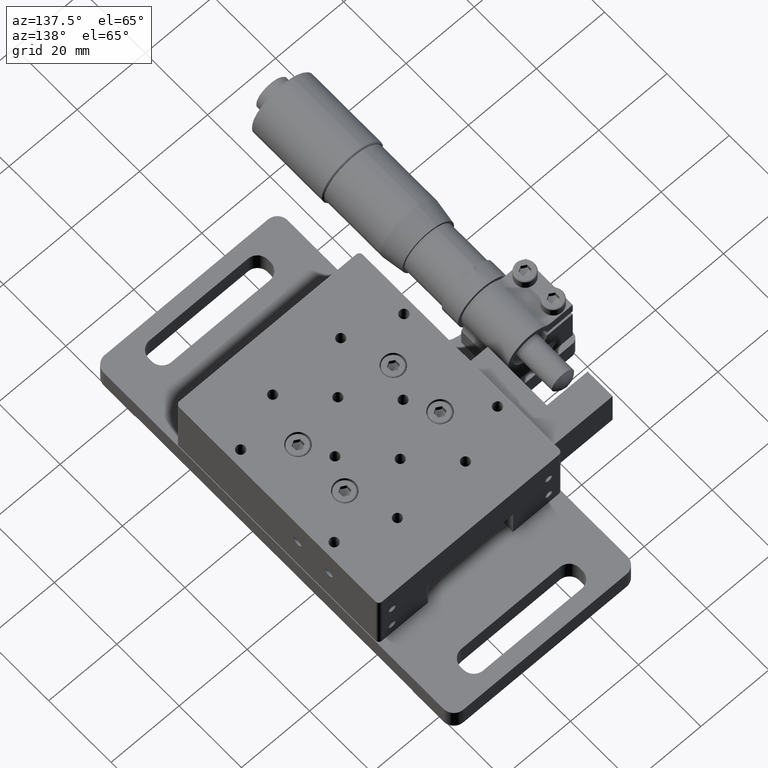
[diagram: clean part render]
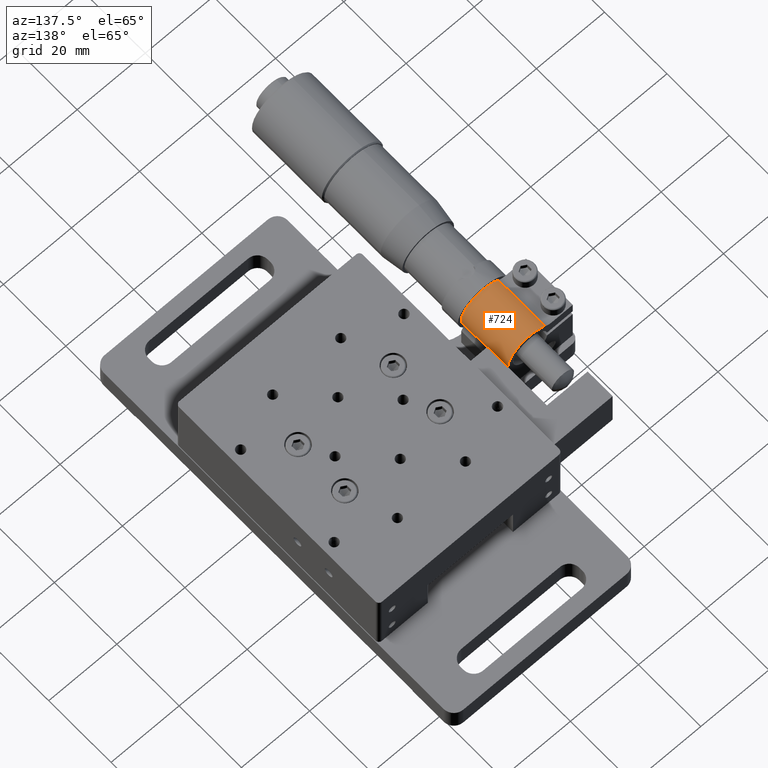
[diagram: same view with one face highlighted and labeled with its STEP entity id]
A machine part, auxiliary view. The second image highlights one B-rep face of the part: STEP entity #724.
In plain terms, the highlighted face is a freeform B-spline surface patch.
Its self-contained STEP definition (entity closure, byte-faithful):
#724=ADVANCED_FACE('',(#1377),#24262,.T.);
#1377=FACE_OUTER_BOUND('',#2107,.T.);
#2107=EDGE_LOOP('',(#4405,#4406,#4407,#4408));
#4405=ORIENTED_EDGE('',*,*,#20220,.T.);
#4406=ORIENTED_EDGE('',*,*,#20221,.T.);
#4407=ORIENTED_EDGE('',*,*,#20222,.T.);
#4408=ORIENTED_EDGE('',*,*,#20223,.T.);
#8030=PCURVE('',#24262,#11655);
#8031=PCURVE('',#24262,#11656);
#8032=PCURVE('',#24262,#11657);
#8033=PCURVE('',#24262,#11658);
#8035=PCURVE('',#24263,#11660);
#8070=PCURVE('',#24266,#11695);
#8116=PCURVE('',#24010,#11741);
#8304=PCURVE('',#24019,#11929);
#11655=DEFINITIONAL_REPRESENTATION('',(#15641),#50008);
#11656=DEFINITIONAL_REPRESENTATION('',(#15642),#50008);
#11657=DEFINITIONAL_REPRESENTATION('',(#15644),#50008);
#11658=DEFINITIONAL_REPRESENTATION('',(#15645),#50008);
#11660=DEFINITIONAL_REPRESENTATION('',(#15647),#50008);
#11695=DEFINITIONAL_REPRESENTATION('',(#15686),#50008);
#11741=DEFINITIONAL_REPRESENTATION('',(#21768),#50008);
#11929=DEFINITIONAL_REPRESENTATION('',(#21868),#50008);
#15640=B_SPLINE_CURVE_WITH_KNOTS('',1,(#38963,#38964),.UNSPECIFIED.,.F.,
 .F.,(2,2),(0.,15.),.UNSPECIFIED.);
#15641=B_SPLINE_CURVE_WITH_KNOTS('',1,(#38965,#38966),.UNSPECIFIED.,.F.,
 .F.,(2,2),(0.,15.),.UNSPECIFIED.);
#15642=B_SPLINE_CURVE_WITH_KNOTS('',1,(#38972,#38973),.UNSPECIFIED.,.F.,
 .F.,(2,2),(0.,16.598461578299),.UNSPECIFIED.);
#15643=B_SPLINE_CURVE_WITH_KNOTS('',1,(#38974,#38975),.UNSPECIFIED.,.F.,
 .F.,(2,2),(-15.,0.),.UNSPECIFIED.);
#15644=B_SPLINE_CURVE_WITH_KNOTS('',1,(#38976,#38977),.UNSPECIFIED.,.F.,
 .F.,(2,2),(-15.,0.),.UNSPECIFIED.);
#15645=B_SPLINE_CURVE_WITH_KNOTS('',1,(#38983,#38984),.UNSPECIFIED.,.F.,
 .F.,(2,2),(0.,16.598461578299),.UNSPECIFIED.);
#15647=B_SPLINE_CURVE_WITH_KNOTS('',1,(#38990,#38991),.UNSPECIFIED.,.F.,
 .F.,(2,2),(-15.,0.),.UNSPECIFIED.);
#15686=B_SPLINE_CURVE_WITH_KNOTS('',1,(#39179,#39180),.UNSPECIFIED.,.F.,
 .F.,(2,2),(0.,15.),.UNSPECIFIED.);
#18365=SURFACE_CURVE('',#15640,(#8030,#8070),.PCURVE_S1.);
#18366=SURFACE_CURVE('',#21715,(#8031,#8304),.PCURVE_S1.);
#18367=SURFACE_CURVE('',#15643,(#8032,#8035),.PCURVE_S1.);
#18368=SURFACE_CURVE('',#21716,(#8033,#8116),.PCURVE_S1.);
#20220=EDGE_CURVE('',#23231,#23232,#18365,.T.);
#20221=EDGE_CURVE('',#23232,#23233,#18366,.T.);
#20222=EDGE_CURVE('',#23233,#23234,#18367,.T.);
#20223=EDGE_CURVE('',#23234,#23231,#18368,.T.);
#21715=(
BOUNDED_CURVE()
B_SPLINE_CURVE(2,(#38967,#38968,#38969,#38970,#38971),.UNSPECIFIED.,.F.,
 .F.)
B_SPLINE_CURVE_WITH_KNOTS((3,2,3),(0.,8.29923078914948,16.598461578299),
 .UNSPECIFIED.)
CURVE()
GEOMETRIC_REPRESENTATION_ITEM()
RATIONAL_B_SPLINE_CURVE((1.,0.803048832144121,1.,0.803048832144121,1.))
REPRESENTATION_ITEM('')
);
#21716=(
BOUNDED_CURVE()
B_SPLINE_CURVE(2,(#38978,#38979,#38980,#38981,#38982),.UNSPECIFIED.,.F.,
 .F.)
B_SPLINE_CURVE_WITH_KNOTS((3,2,3),(0.,8.29923078914948,16.598461578299),
 .UNSPECIFIED.)
CURVE()
GEOMETRIC_REPRESENTATION_ITEM()
RATIONAL_B_SPLINE_CURVE((1.,0.803048832144121,1.,0.803048832144121,1.))
REPRESENTATION_ITEM('')
);
#21768=(
BOUNDED_CURVE()
B_SPLINE_CURVE(2,(#39404,#39405,#39406,#39407,#39408),.UNSPECIFIED.,.F.,
 .F.)
B_SPLINE_CURVE_WITH_KNOTS((3,2,3),(0.,8.299231778495,16.598461578299),
 .UNSPECIFIED.)
CURVE()
GEOMETRIC_REPRESENTATION_ITEM()
RATIONAL_B_SPLINE_CURVE((1.,0.803048832144119,1.,0.80304891680955,1.))
REPRESENTATION_ITEM('')
);
#21868=(
BOUNDED_CURVE()
B_SPLINE_CURVE(2,(#40406,#40407,#40408,#40409,#40410),.UNSPECIFIED.,.F.,
 .F.)
B_SPLINE_CURVE_WITH_KNOTS((3,2,3),(0.,8.299231778495,16.598461578299),
 .UNSPECIFIED.)
CURVE()
GEOMETRIC_REPRESENTATION_ITEM()
RATIONAL_B_SPLINE_CURVE((1.,0.803048832144119,1.,0.80304891680955,1.))
REPRESENTATION_ITEM('')
);
#23231=VERTEX_POINT('',#30874);
#23232=VERTEX_POINT('',#30875);
#23233=VERTEX_POINT('',#30876);
#23234=VERTEX_POINT('',#30877);
#24010=B_SPLINE_SURFACE_WITH_KNOTS('',1,1,((#27856,#27857),(#27858,#27859)),
 .UNSPECIFIED.,.F.,.F.,.F.,(2,2),(2,2),(-12.5610494560988,11.6327546050454),
(-11.4252867657443,12.275209561258),.UNSPECIFIED.);
#24019=B_SPLINE_SURFACE_WITH_KNOTS('',1,1,((#28403,#28404),(#28405,#28406)),
 .UNSPECIFIED.,.F.,.F.,.F.,(2,2),(2,2),(-7.89029740703539,9.46967545362803),
(-9.42280677796644,5.84591128760831),.UNSPECIFIED.);
#24262=(
BOUNDED_SURFACE()
B_SPLINE_SURFACE(2,1,((#27702,#27703),(#27704,#27705),(#27706,#27707),(#27708,
#27709),(#27710,#27711),(#27712,#27713),(#27714,#27715),(#27716,#27717),
(#27718,#27719)),.UNSPECIFIED.,.T.,.F.,.F.)
B_SPLINE_SURFACE_WITH_KNOTS((3,2,2,2,3),(2,2),(0.,1.5707963267949,3.14159265358979,
4.71238898038469,6.28318530717959),(0.,18.24),.UNSPECIFIED.)
GEOMETRIC_REPRESENTATION_ITEM()
RATIONAL_B_SPLINE_SURFACE(((1.,1.),(0.707106781186548,0.707106781186548),
(1.,1.),(0.707106781186548,0.707106781186548),(1.,1.),(0.707106781186548,
0.707106781186548),(1.,1.),(0.707106781186548,0.707106781186548),(1.,1.)))
REPRESENTATION_ITEM('')
SURFACE()
);
#24263=(
BOUNDED_SURFACE()
B_SPLINE_SURFACE(1,2,((#27720,#27721,#27722,#27723,#27724,#27725,#27726,
#27727,#27728),(#27729,#27730,#27731,#27732,#27733,#27734,#27735,#27736,
#27737)),.UNSPECIFIED.,.F.,.F.,.F.)
B_SPLINE_SURFACE_WITH_KNOTS((2,2),(3,2,2,2,3),(0.,18.24),(0.,1.5707963267949,
3.14159265358979,4.71238898038469,6.28318530717959),.UNSPECIFIED.)
GEOMETRIC_REPRESENTATION_ITEM()
RATIONAL_B_SPLINE_SURFACE(((1.,0.707106781186548,1.,0.707106781186548,1.,
0.707106781186548,1.,0.707106781186548,1.),(1.,0.707106781186548,1.,0.707106781186548,
1.,0.707106781186548,1.,0.707106781186548,1.)))
REPRESENTATION_ITEM('')
SURFACE()
);
#24266=(
BOUNDED_SURFACE()
B_SPLINE_SURFACE(1,2,((#27786,#27787,#27788,#27789,#27790,#27791,#27792,
#27793,#27794),(#27795,#27796,#27797,#27798,#27799,#27800,#27801,#27802,
#27803)),.UNSPECIFIED.,.F.,.F.,.F.)
B_SPLINE_SURFACE_WITH_KNOTS((2,2),(3,2,2,2,3),(0.,18.24),(0.,1.5707963267949,
3.14159265358979,4.71238898038469,6.28318530717959),.UNSPECIFIED.)
GEOMETRIC_REPRESENTATION_ITEM()
RATIONAL_B_SPLINE_SURFACE(((1.,0.707106781186548,1.,0.707106781186548,1.,
0.707106781186548,1.,0.707106781186548,1.),(1.,0.707106781186548,1.,0.707106781186548,
1.,0.707106781186548,1.,0.707106781186548,1.)))
REPRESENTATION_ITEM('')
SURFACE()
);
#27702=CARTESIAN_POINT('',(-47.372950650202,3.23319641562347,6.52999999999998));
#27703=CARTESIAN_POINT('',(-47.372950650202,3.23319641562347,24.77));
#27704=CARTESIAN_POINT('',(-47.372950650202,-3.26680358437653,6.52999999999998));
#27705=CARTESIAN_POINT('',(-47.372950650202,-3.26680358437654,24.77));
#27706=CARTESIAN_POINT('',(-40.872950650202,-3.26680358437653,6.52999999999998));
#27707=CARTESIAN_POINT('',(-40.872950650202,-3.26680358437654,24.77));
#27708=CARTESIAN_POINT('',(-34.372950650202,-3.26680358437653,6.52999999999998));
#27709=CARTESIAN_POINT('',(-34.372950650202,-3.26680358437654,24.77));
#27710=CARTESIAN_POINT('',(-34.372950650202,3.23319641562347,6.52999999999998));
#27711=CARTESIAN_POINT('',(-34.372950650202,3.23319641562347,24.77));
#27712=CARTESIAN_POINT('',(-34.372950650202,9.73319641562347,6.52999999999998));
#27713=CARTESIAN_POINT('',(-34.372950650202,9.73319641562347,24.77));
#27714=CARTESIAN_POINT('',(-40.872950650202,9.73319641562347,6.52999999999998));
#27715=CARTESIAN_POINT('',(-40.872950650202,9.73319641562348,24.77));
#27716=CARTESIAN_POINT('',(-47.372950650202,9.73319641562347,6.52999999999998));
#27717=CARTESIAN_POINT('',(-47.372950650202,9.73319641562348,24.77));
#27718=CARTESIAN_POINT('',(-47.372950650202,3.23319641562347,6.52999999999998));
#27719=CARTESIAN_POINT('',(-47.372950650202,3.23319641562347,24.77));
#27720=CARTESIAN_POINT('',(-26.6749116230164,0.733196415623467,6.52999999999998));
#27721=CARTESIAN_POINT('',(-26.6749116230164,4.73319641562347,6.52999999999998));
#27722=CARTESIAN_POINT('',(-30.6749116230164,4.73319641562347,6.52999999999998));
#27723=CARTESIAN_POINT('',(-34.6749116230164,4.73319641562347,6.52999999999998));
#27724=CARTESIAN_POINT('',(-34.6749116230164,0.733196415623467,6.52999999999998));
#27725=CARTESIAN_POINT('',(-34.6749116230164,-3.26680358437653,6.52999999999998));
#27726=CARTESIAN_POINT('',(-30.6749116230164,-3.26680358437653,6.52999999999998));
#27727=CARTESIAN_POINT('',(-26.6749116230164,-3.26680358437653,6.52999999999998));
#27728=CARTESIAN_POINT('',(-26.6749116230164,0.733196415623467,6.52999999999998));
#27729=CARTESIAN_POINT('',(-26.6749116230164,0.733196415623467,24.77));
#27730=CARTESIAN_POINT('',(-26.6749116230164,4.73319641562347,24.77));
#27731=CARTESIAN_POINT('',(-30.6749116230164,4.73319641562347,24.77));
#27732=CARTESIAN_POINT('',(-34.6749116230164,4.73319641562347,24.77));
#27733=CARTESIAN_POINT('',(-34.6749116230164,0.733196415623467,24.77));
#27734=CARTESIAN_POINT('',(-34.6749116230164,-3.26680358437654,24.77));
#27735=CARTESIAN_POINT('',(-30.6749116230164,-3.26680358437654,24.77));
#27736=CARTESIAN_POINT('',(-26.6749116230164,-3.26680358437654,24.77));
#27737=CARTESIAN_POINT('',(-26.6749116230164,0.733196415623467,24.77));
#27786=CARTESIAN_POINT('',(-44.2955669395346,10.2331964156235,6.52999999999998));
#27787=CARTESIAN_POINT('',(-44.2955669395346,13.2331964156235,6.52999999999998));
#27788=CARTESIAN_POINT('',(-47.2955669395346,13.2331964156235,6.52999999999998));
#27789=CARTESIAN_POINT('',(-50.2955669395346,13.2331964156235,6.52999999999998));
#27790=CARTESIAN_POINT('',(-50.2955669395346,10.2331964156235,6.52999999999998));
#27791=CARTESIAN_POINT('',(-50.2955669395346,7.2331964156235,6.52999999999998));
#27792=CARTESIAN_POINT('',(-47.2955669395346,7.2331964156235,6.52999999999998));
#27793=CARTESIAN_POINT('',(-44.2955669395346,7.2331964156235,6.52999999999998));
#27794=CARTESIAN_POINT('',(-44.2955669395346,10.2331964156235,6.52999999999998));
#27795=CARTESIAN_POINT('',(-44.2955669395346,10.2331964156235,24.77));
#27796=CARTESIAN_POINT('',(-44.2955669395346,13.2331964156235,24.77));
#27797=CARTESIAN_POINT('',(-47.2955669395346,13.2331964156235,24.77));
#27798=CARTESIAN_POINT('',(-50.2955669395346,13.2331964156235,24.77));
#27799=CARTESIAN_POINT('',(-50.2955669395346,10.2331964156235,24.77));
#27800=CARTESIAN_POINT('',(-50.2955669395346,7.23319641562349,24.77));
#27801=CARTESIAN_POINT('',(-47.2955669395346,7.23319641562349,24.77));
#27802=CARTESIAN_POINT('',(-44.2955669395346,7.23319641562349,24.77));
#27803=CARTESIAN_POINT('',(-44.2955669395346,10.2331964156235,24.77));
#27856=CARTESIAN_POINT('',(-31.2952969274865,-10.3418449449601,8.14999999999998));
#27857=CARTESIAN_POINT('',(-31.2952969274865,13.3586513820422,8.14999999999998));
#27858=CARTESIAN_POINT('',(-55.4891009886307,-10.3418449449601,8.14999999999998));
#27859=CARTESIAN_POINT('',(-55.4891009886307,13.3586513820422,8.14999999999998));
#28403=CARTESIAN_POINT('',(-48.7632480572374,12.6560031935899,23.15));
#28404=CARTESIAN_POINT('',(-48.7632480572374,-2.61271487198484,23.15));
#28405=CARTESIAN_POINT('',(-31.403275196574,12.6560031935899,23.15));
#28406=CARTESIAN_POINT('',(-31.403275196574,-2.61271487198483,23.15));
#30874=CARTESIAN_POINT('',(-45.2673723218506,8.02267009983401,8.14999999999998));
#30875=CARTESIAN_POINT('',(-45.2673723218506,8.02267009983401,23.15));
#30876=CARTESIAN_POINT('',(-34.5598788714681,1.68557736800441,23.15));
#30877=CARTESIAN_POINT('',(-34.5598788714681,1.68557736800441,8.14999999999998));
#38963=CARTESIAN_POINT('',(-45.2673723218506,8.02267009983401,8.14999999999998));
#38964=CARTESIAN_POINT('',(-45.2673723218506,8.02267009983401,23.15));
#38965=CARTESIAN_POINT('',(5.45702451698511,1.62000000000001));
#38966=CARTESIAN_POINT('',(5.45702451698511,16.62));
#38967=CARTESIAN_POINT('',(-45.2673723218506,8.02267009983401,23.15));
#38968=CARTESIAN_POINT('',(-41.713278721508,11.2836100214587,23.15));
#38969=CARTESIAN_POINT('',(-37.5623629937116,8.82694376142785,23.15));
#38970=CARTESIAN_POINT('',(-33.4114472659152,6.37027750139702,23.15));
#38971=CARTESIAN_POINT('',(-34.5598788714681,1.68557736800441,23.15));
#38972=CARTESIAN_POINT('',(5.45702451698511,16.62));
#38973=CARTESIAN_POINT('',(2.88606155937954,16.62));
#38974=CARTESIAN_POINT('',(-34.5598788714681,1.68557736800441,23.15));
#38975=CARTESIAN_POINT('',(-34.5598788714681,1.68557736800441,8.14999999999998));
#38976=CARTESIAN_POINT('',(2.88606155937954,16.62));
#38977=CARTESIAN_POINT('',(2.88606155937954,1.62000000000001));
#38978=CARTESIAN_POINT('',(-34.5598788714681,1.68557736800441,8.14999999999998));
#38979=CARTESIAN_POINT('',(-33.4114472659152,6.37027750139703,8.14999999999998));
#38980=CARTESIAN_POINT('',(-37.5623629937116,8.82694376142786,8.14999999999998));
#38981=CARTESIAN_POINT('',(-41.7132787215081,11.2836100214587,8.14999999999998));
#38982=CARTESIAN_POINT('',(-45.2673723218506,8.02267009983401,8.14999999999998));
#38983=CARTESIAN_POINT('',(2.88606155937954,1.62000000000001));
#38984=CARTESIAN_POINT('',(5.45702451698511,1.62000000000001));
#38990=CARTESIAN_POINT('',(16.62,2.88606155937955));
#38991=CARTESIAN_POINT('',(1.62,2.88606155937955));
#39179=CARTESIAN_POINT('',(1.62000000000001,5.45702451698512));
#39180=CARTESIAN_POINT('',(16.62,5.45702451698512));
#39404=CARTESIAN_POINT('',(-9.29646751211723,0.602135547220219));
#39405=CARTESIAN_POINT('',(-10.4448991176701,5.28683568061284));
#39406=CARTESIAN_POINT('',(-6.29398338987367,7.74350194064366));
#39407=CARTESIAN_POINT('',(-2.14306889444986,10.2001674713106));
#39408=CARTESIAN_POINT('',(1.41102593826533,6.93922827904982));
#40406=CARTESIAN_POINT('',(-4.39442167164862,-4.78947368421054));
#40407=CARTESIAN_POINT('',(-0.840328071306031,-8.05041360583521));
#40408=CARTESIAN_POINT('',(3.31058765649039,-5.59374734580438));
#40409=CARTESIAN_POINT('',(7.4615021519142,-3.13708181513747));
#40410=CARTESIAN_POINT('',(6.31307177873393,1.54761904761906));
#50008=(
GEOMETRIC_REPRESENTATION_CONTEXT(2)
PARAMETRIC_REPRESENTATION_CONTEXT()
REPRESENTATION_CONTEXT('pspace','')
);